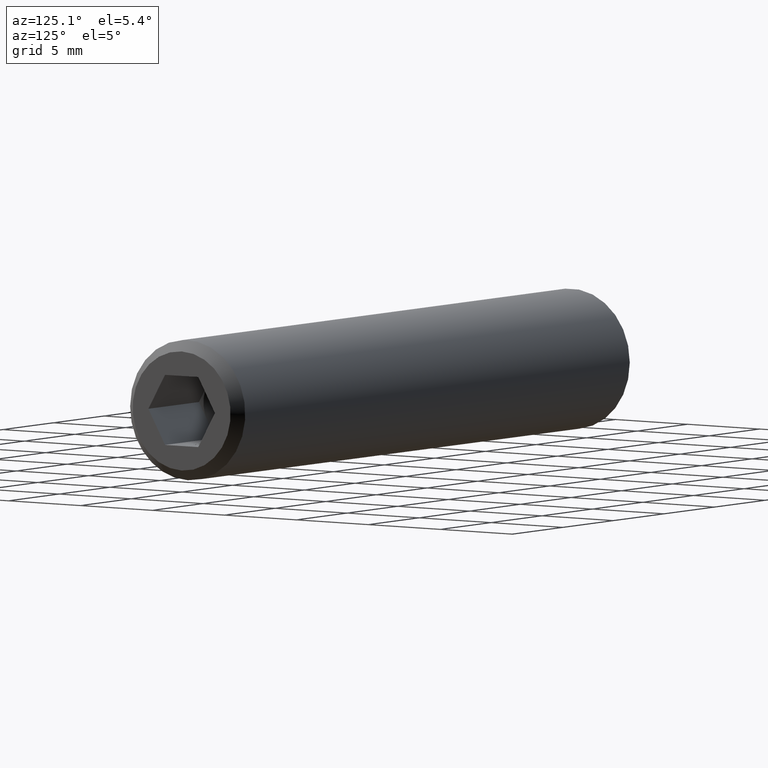
[diagram: clean part render]
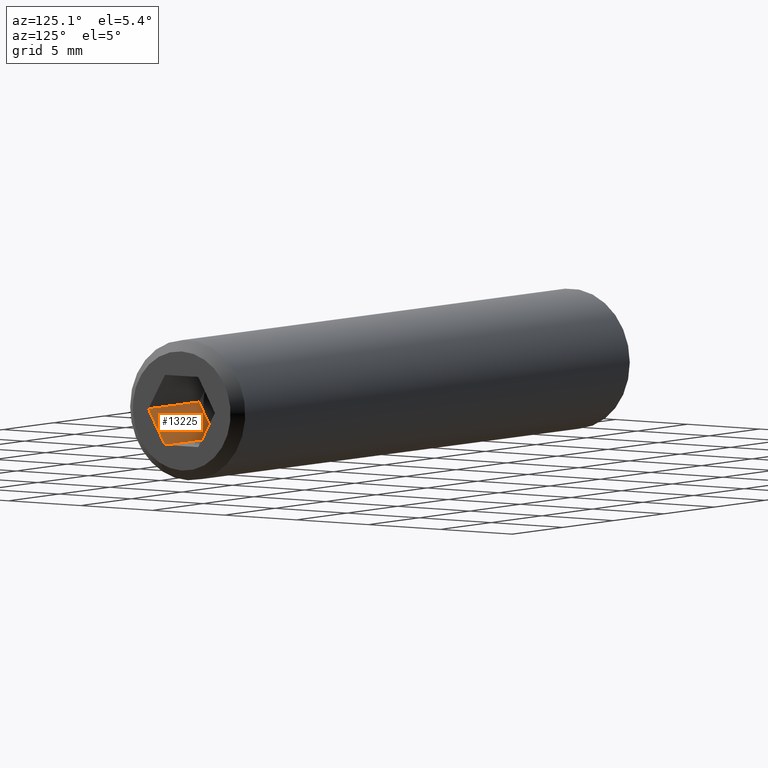
[diagram: same view with one face highlighted and labeled with its STEP entity id]
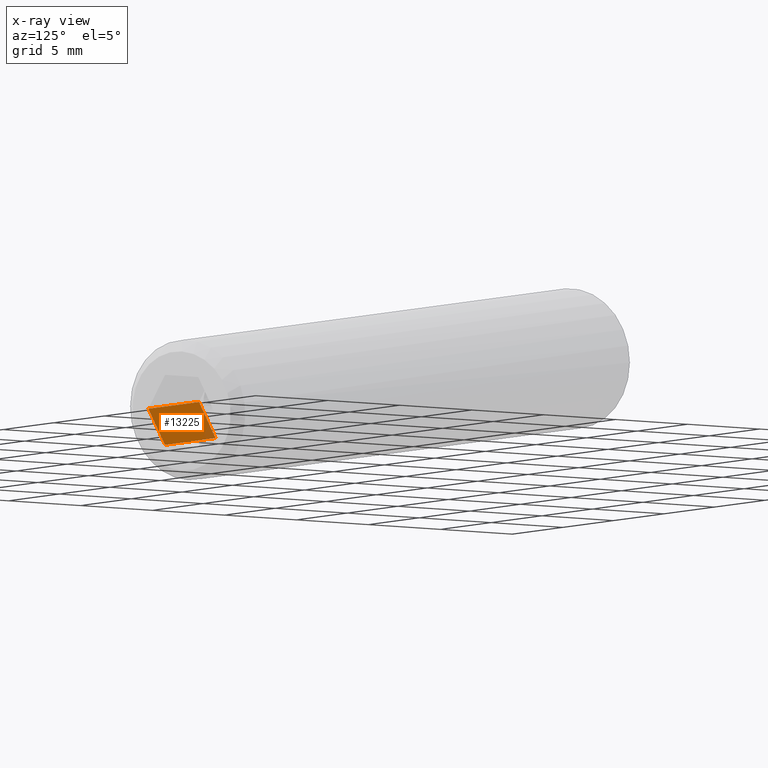
[diagram: x-ray of the same camera — body ghosted, the highlighted face saturated]
A machine part, auxiliary view. The second image highlights one B-rep face of the part: STEP entity #13225.
The next image is the same camera in x-ray: the body ghosted, the highlighted face saturated — about 5% of this face is hidden behind the body in this view.
In plain terms, the highlighted planar face has unit normal (0, -0.866, -0.5).
Its self-contained STEP definition (entity closure, byte-faithful):
#772 = VERTEX_POINT ( 'NONE', #13975 ) ;
#805 = CARTESIAN_POINT ( 'NONE',  ( 35.00000000000000000, -1.732050807568878500, -0.9999999999999986700 ) ) ;
#886 = CARTESIAN_POINT ( 'NONE',  ( 40.00000000000000000, -2.309401076758506000, 0.0000000000000000000 ) ) ;
#1237 = DIRECTION ( 'NONE',  ( 0.0000000000000000000, 0.4999999999999997800, -0.8660254037844387100 ) ) ;
#1992 = FACE_OUTER_BOUND ( 'NONE', #14319, .T. ) ;
#2399 = EDGE_CURVE ( 'NONE', #772, #4314, #6750, .T. ) ;
#2699 = CARTESIAN_POINT ( 'NONE',  ( 35.00000000000000000, -2.309401076758506500, -3.109184591373183400E-016 ) ) ;
#3198 = LINE ( 'NONE', #15494, #17204 ) ;
#4101 = LINE ( 'NONE', #6159, #13849 ) ;
#4314 = VERTEX_POINT ( 'NONE', #805 ) ;
#4505 = VERTEX_POINT ( 'NONE', #9433 ) ;
#4584 = DIRECTION ( 'NONE',  ( 1.000000000000000000, -0.0000000000000000000, 6.123031769111886300E-017 ) ) ;
#4911 = DIRECTION ( 'NONE',  ( 1.000000000000000000, -0.0000000000000000000, 6.123031769111886300E-017 ) ) ;
#5101 = VERTEX_POINT ( 'NONE', #886 ) ;
#5449 = DIRECTION ( 'NONE',  ( 0.0000000000000000000, 0.4999999999999997800, -0.8660254037844387100 ) ) ;
#6159 = CARTESIAN_POINT ( 'NONE',  ( 35.00000000000000000, -2.309401076758506500, -3.109184591373183400E-016 ) ) ;
#6194 = DIRECTION ( 'NONE',  ( 0.0000000000000000000, 0.4999999999999997800, -0.8660254037844387100 ) ) ;
#6337 = ORIENTED_EDGE ( 'NONE', *, *, #10494, .T. ) ;
#6750 = LINE ( 'NONE', #10296, #12492 ) ;
#7093 = ORIENTED_EDGE ( 'NONE', *, *, #8861, .T. ) ;
#7427 = VERTEX_POINT ( 'NONE', #13814 ) ;
#7834 = EDGE_CURVE ( 'NONE', #4314, #7427, #16611, .T. ) ;
#8300 = ORIENTED_EDGE ( 'NONE', *, *, #7834, .F. ) ;
#8323 = VECTOR ( 'NONE', #1237, 1000.000000000000200 ) ;
#8861 = EDGE_CURVE ( 'NONE', #772, #5101, #4101, .T. ) ;
#9433 = CARTESIAN_POINT ( 'NONE',  ( 40.00000000000000000, -1.154700538379255700, -2.000000000000000000 ) ) ;
#9717 = DIRECTION ( 'NONE',  ( 0.0000000000000000000, 0.4999999999999997800, -0.8660254037844387100 ) ) ;
#9834 = ORIENTED_EDGE ( 'NONE', *, *, #2399, .F. ) ;
#10287 = AXIS2_PLACEMENT_3D ( 'NONE', #12394, #16458, #9717 ) ;
#10296 = CARTESIAN_POINT ( 'NONE',  ( 35.00000000000000000, -2.309401076758506500, -3.109184591373183400E-016 ) ) ;
#10494 = EDGE_CURVE ( 'NONE', #5101, #4505, #16578, .T. ) ;
#10872 = EDGE_CURVE ( 'NONE', #7427, #4505, #3198, .T. ) ;
#11554 = VECTOR ( 'NONE', #5449, 1000.000000000000200 ) ;
#12067 = CARTESIAN_POINT ( 'NONE',  ( 40.00000000000000000, -2.309401076758506500, -4.766870681724039000E-018 ) ) ;
#12394 = CARTESIAN_POINT ( 'NONE',  ( 35.00000000000000000, -2.309401076758506500, -3.109184591373183400E-016 ) ) ;
#12492 = VECTOR ( 'NONE', #6194, 1000.000000000000200 ) ;
#13225 = ADVANCED_FACE ( 'NONE', ( #1992 ), #15344, .F. ) ;
#13814 = CARTESIAN_POINT ( 'NONE',  ( 35.00000000000000000, -1.154700538379255700, -2.000000000000000400 ) ) ;
#13849 = VECTOR ( 'NONE', #4911, 1000.000000000000000 ) ;
#13975 = CARTESIAN_POINT ( 'NONE',  ( 35.00000000000000000, -2.309401076758506500, -3.109184591373183400E-016 ) ) ;
#14000 = ORIENTED_EDGE ( 'NONE', *, *, #10872, .F. ) ;
#14319 = EDGE_LOOP ( 'NONE', ( #6337, #14000, #8300, #9834, #7093 ) ) ;
#15344 = PLANE ( 'NONE',  #10287 ) ;
#15494 = CARTESIAN_POINT ( 'NONE',  ( 35.00000000000000000, -1.154700538379255700, -2.000000000000000400 ) ) ;
#16458 = DIRECTION ( 'NONE',  ( 3.061515884555941900E-017, -0.8660254037844388200, -0.4999999999999998300 ) ) ;
#16578 = LINE ( 'NONE', #12067, #8323 ) ;
#16611 = LINE ( 'NONE', #2699, #11554 ) ;
#17204 = VECTOR ( 'NONE', #4584, 1000.000000000000000 ) ;